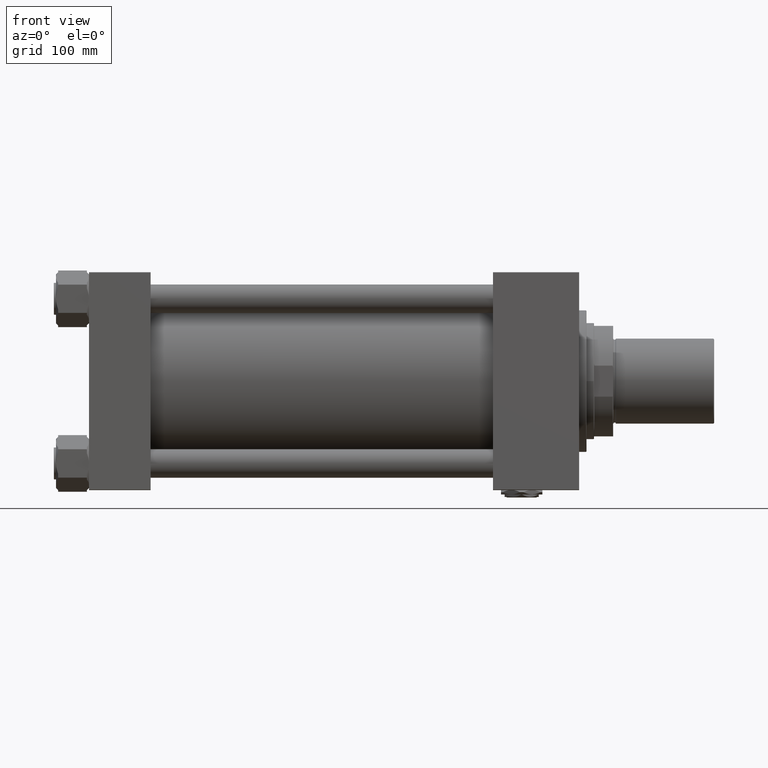
[diagram: clean part render]
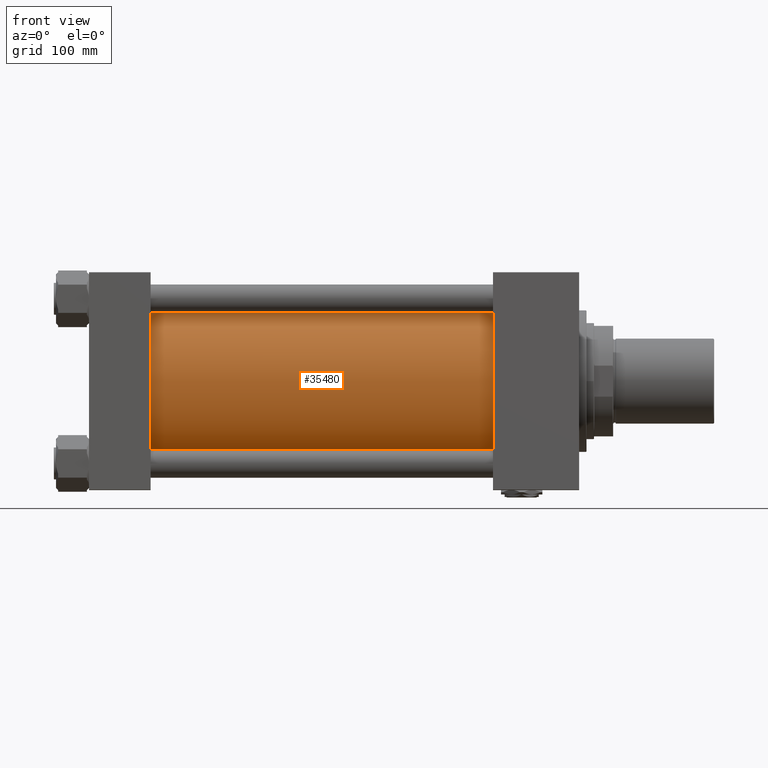
[diagram: same view with one face highlighted and labeled with its STEP entity id]
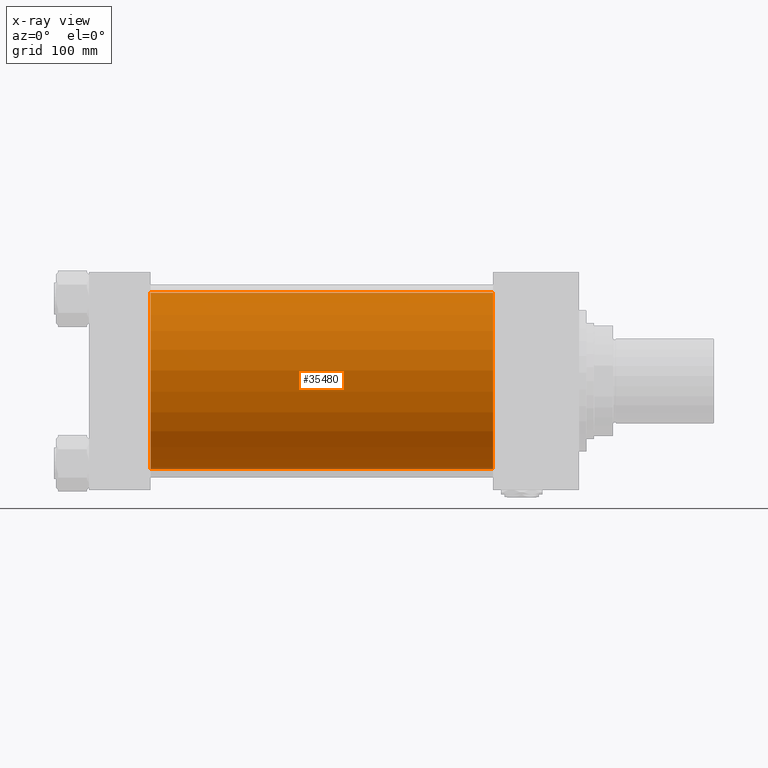
[diagram: x-ray of the same camera — body ghosted, the highlighted face saturated]
A machine part, front view. The second image highlights one B-rep face of the part: STEP entity #35480.
The next image is the same camera in x-ray: the body ghosted, the highlighted face saturated — about 2% of this face is hidden behind the body in this view.
In plain terms, the highlighted cylindrical surface (partial cylindrical patch) has radius 83 mm, axis along (-1, -0, -0).
Its self-contained STEP definition (entity closure, byte-faithful):
#1468 = CYLINDRICAL_SURFACE ( 'NONE', #9883, 83.00000000000000000 ) ;
#2514 = CARTESIAN_POINT ( 'NONE',  ( 380.0000000000000000, -2.602085213965210642E-15, 0.000000000000000000 ) ) ;
#3283 = CARTESIAN_POINT ( 'NONE',  ( 57.99999999999999289, 7.562483218957820855E-15, -83.00000000000000000 ) ) ;
#3335 = VERTEX_POINT ( 'NONE', #4043 ) ;
#4043 = CARTESIAN_POINT ( 'NONE',  ( 57.99999999999999289, -2.602085213965210642E-15, 83.00000000000000000 ) ) ;
#6322 = DIRECTION ( 'NONE',  ( 1.000000000000000000, 0.000000000000000000, 0.000000000000000000 ) ) ;
#7471 = CARTESIAN_POINT ( 'NONE',  ( 380.0000000000000000, -2.602085213965210642E-15, 83.00000000000000000 ) ) ;
#9883 = AXIS2_PLACEMENT_3D ( 'NONE', #2514, #10280, #22572 ) ;
#10280 = DIRECTION ( 'NONE',  ( -1.000000000000000000, -0.000000000000000000, -0.000000000000000000 ) ) ;
#10813 = CARTESIAN_POINT ( 'NONE',  ( 380.0000000000000000, -2.602085213965210642E-15, 83.00000000000000000 ) ) ;
#12334 = EDGE_CURVE ( 'NONE', #38424, #49895, #21598, .T. ) ;
#13284 = EDGE_LOOP ( 'NONE', ( #45369, #30476, #26042, #30690 ) ) ;
#18726 = EDGE_CURVE ( 'NONE', #22413, #38424, #20673, .T. ) ;
#20673 = CIRCLE ( 'NONE', #24076, 83.00000000000000000 ) ;
#21598 = LINE ( 'NONE', #34693, #33447 ) ;
#22070 = DIRECTION ( 'NONE',  ( -1.000000000000000000, -0.000000000000000000, -0.000000000000000000 ) ) ;
#22413 = VERTEX_POINT ( 'NONE', #7471 ) ;
#22572 = DIRECTION ( 'NONE',  ( 0.000000000000000000, 0.000000000000000000, 1.000000000000000000 ) ) ;
#24076 = AXIS2_PLACEMENT_3D ( 'NONE', #42743, #6322, #30400 ) ;
#26042 = ORIENTED_EDGE ( 'NONE', *, *, #36181, .T. ) ;
#28539 = EDGE_CURVE ( 'NONE', #3335, #49895, #46558, .T. ) ;
#28806 = DIRECTION ( 'NONE',  ( 0.000000000000000000, 0.000000000000000000, 1.000000000000000000 ) ) ;
#30400 = DIRECTION ( 'NONE',  ( 0.000000000000000000, 0.000000000000000000, -1.000000000000000000 ) ) ;
#30476 = ORIENTED_EDGE ( 'NONE', *, *, #18726, .F. ) ;
#30690 = ORIENTED_EDGE ( 'NONE', *, *, #28539, .T. ) ;
#33447 = VECTOR ( 'NONE', #37949, 1000.000000000000000 ) ;
#33842 = VECTOR ( 'NONE', #22070, 1000.000000000000000 ) ;
#34693 = CARTESIAN_POINT ( 'NONE',  ( 380.0000000000000000, 7.562483218957820855E-15, -83.00000000000000000 ) ) ;
#34965 = CARTESIAN_POINT ( 'NONE',  ( 380.0000000000000000, 7.562483218957820855E-15, -83.00000000000000000 ) ) ;
#35480 = ADVANCED_FACE ( 'NONE', ( #38414 ), #1468, .T. ) ;
#36181 = EDGE_CURVE ( 'NONE', #22413, #3335, #47504, .T. ) ;
#36871 = CARTESIAN_POINT ( 'NONE',  ( 57.99999999999999289, -2.602085213965210642E-15, 0.000000000000000000 ) ) ;
#37662 = DIRECTION ( 'NONE',  ( 1.000000000000000000, -0.000000000000000000, -0.000000000000000000 ) ) ;
#37949 = DIRECTION ( 'NONE',  ( -1.000000000000000000, -0.000000000000000000, -0.000000000000000000 ) ) ;
#38414 = FACE_OUTER_BOUND ( 'NONE', #13284, .T. ) ;
#38424 = VERTEX_POINT ( 'NONE', #34965 ) ;
#42743 = CARTESIAN_POINT ( 'NONE',  ( 380.0000000000000000, -2.602085213965210642E-15, 0.000000000000000000 ) ) ;
#45369 = ORIENTED_EDGE ( 'NONE', *, *, #12334, .F. ) ;
#46558 = CIRCLE ( 'NONE', #50841, 83.00000000000000000 ) ;
#47504 = LINE ( 'NONE', #10813, #33842 ) ;
#49895 = VERTEX_POINT ( 'NONE', #3283 ) ;
#50841 = AXIS2_PLACEMENT_3D ( 'NONE', #36871, #37662, #28806 ) ;